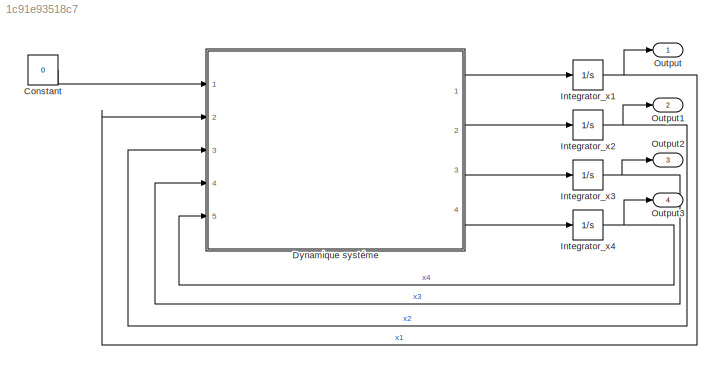
MODEL slx_1c91e93518c7
KIND model
CONFIG AbsTol = auto
CONFIG EnableMultiTasking = off
CONFIG FixedStep = auto
CONFIG MaxStep = auto
CONFIG MinStep = auto
CONFIG RelTol = 1e-3
CONFIG SampleTimeConstraint = Unconstrained
CONFIG SolverName = VariableStepAuto
CONFIG StartTime = 0.0
CONFIG StopTime = 10.0
BLOCK [Constant] Constant
  Value = 0
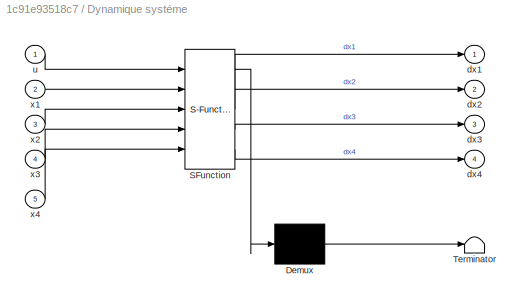
BLOCK [SubSystem] Dynamique systéme
  ErrorFcn = Stateflow.Translate.translate
  PermitHierarchicalResolution = ExplicitOnly
  Ports = [5, 4]
  RequestExecContextInheritance = off
  SFBlockType = MATLAB Function
  TreatAsAtomicUnit = on
BLOCK [Demux] Dynamique systéme/ Demux 
  Outputs = 1
  Ports = [1, 1]
BLOCK [S-Function] Dynamique systéme/ SFunction 
  EnableBusSupport = on
  FunctionName = sf_sfun
  PortCounts = [5 5]
  Ports = [5, 5]
  SFcnIsStateOwnerBlock = off
  SFunctionDeploymentMode = off
  Tag = Stateflow S-Function 2
BLOCK [Terminator] Dynamique systéme/ Terminator 
BLOCK [Outport] Dynamique systéme/dx1
BLOCK [Outport] Dynamique systéme/dx2
  Port = 2
BLOCK [Outport] Dynamique systéme/dx3
  Port = 3
BLOCK [Outport] Dynamique systéme/dx4
  Port = 4
BLOCK [Inport] Dynamique systéme/u
BLOCK [Inport] Dynamique systéme/x1
  Port = 2
BLOCK [Inport] Dynamique systéme/x2
  Port = 3
BLOCK [Inport] Dynamique systéme/x3
  Port = 4
BLOCK [Inport] Dynamique systéme/x4
  Port = 5
BLOCK [Integrator] Integrator_x1
  Ports = [1, 1]
BLOCK [Integrator] Integrator_x2
  Ports = [1, 1]
BLOCK [Integrator] Integrator_x3
  Ports = [1, 1]
BLOCK [Integrator] Integrator_x4
  Ports = [1, 1]
BLOCK [Outport] Output
  IconDisplay = Signal name
BLOCK [Outport] Output1
  IconDisplay = Signal name
  Port = 2
BLOCK [Outport] Output2
  IconDisplay = Signal name
  Port = 3
BLOCK [Outport] Output3
  IconDisplay = Signal name
  Port = 4
LINE Constant:1 -> Dynamique systéme:1
LINE Dynamique systéme:1 -> Integrator_x1:1
LINE Dynamique systéme:2 -> Integrator_x2:1
LINE Dynamique systéme:3 -> Integrator_x3:1
LINE Dynamique systéme:4 -> Integrator_x4:1
NET Integrator_x1:1 -> Dynamique systéme:2, Output:1
NET Integrator_x2:1 -> Dynamique systéme:3, Output1:1
NET Integrator_x3:1 -> Dynamique systéme:4, Output2:1
NET Integrator_x4:1 -> Dynamique systéme:5, Output3:1
note: NET lines group one-source signal fan-out (src -> all destinations, sorted); 1:1 wires keep LINE
CHART Dynamique systéme states=1 transitions=1
  STATE_LABEL 'eML_blk_kernel()'
  STATE_LABEL 'SCRIPT:\nfunction [dx1,dx2,dx3,dx4] = fcn(u,x1,x2,x3,x4)\n    % declaration constants\n    J = 0.02; % kg.m^2\n    m = 0.6; % kg\n    sigma = 0.8; % adimentional\n    g = 9.81; % m/s^2\n    \n    % dynamique\n    dx1 = x2;\n    dx2 = (x1*x4*x4-g*sin(x3))/(1+sigma);\n    dx3 = x4;\n    dx4 = (u-m*g*x1*cos(x3)-2*m*x1*x2*x4)/(J+m*x1*x1);\n'
CHART  states=0 transitions=0
